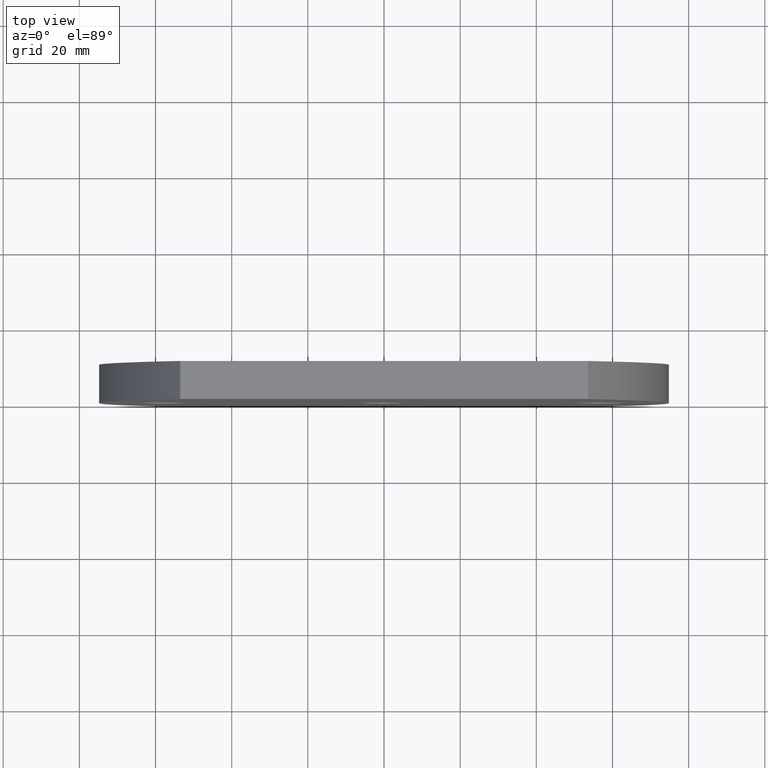
[diagram: clean part render]
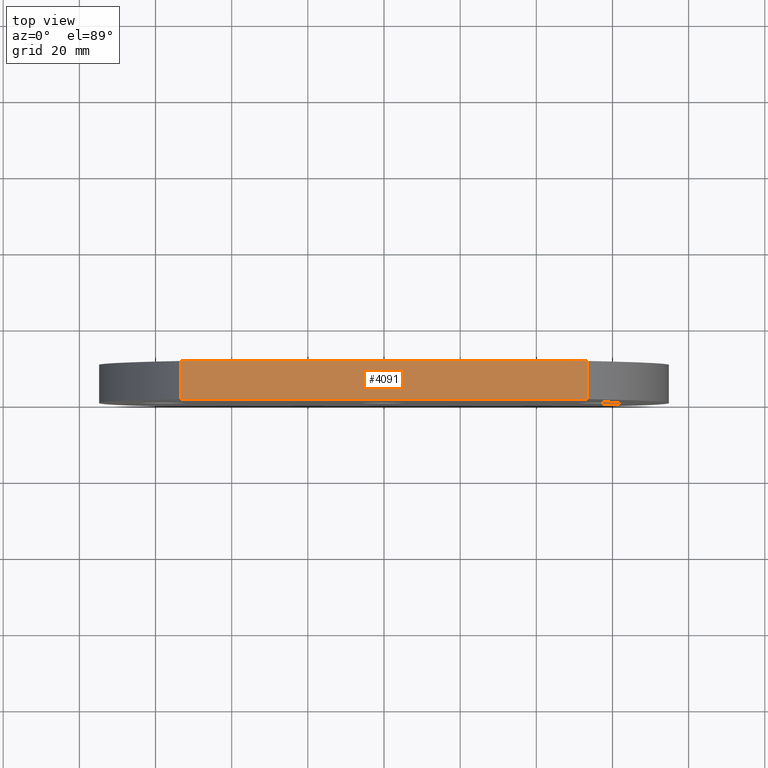
[diagram: same view with one face highlighted and labeled with its STEP entity id]
A machine part, top view. The second image highlights one B-rep face of the part: STEP entity #4091.
In plain terms, the highlighted planar face has unit normal (0, 0, -1).
Its self-contained STEP definition (entity closure, byte-faithful):
#81 = EDGE_CURVE ( 'NONE', #3441, #8683, #6983, .T. ) ;
#715 = EDGE_LOOP ( 'NONE', ( #8236, #7469, #2012, #6643 ) ) ;
#1024 = PLANE ( 'NONE',  #1656 ) ;
#1103 = VECTOR ( 'NONE', #9252, 1000.000000000000000 ) ;
#1260 = DIRECTION ( 'NONE',  ( 1.000000000000000000, 0.0000000000000000000, 0.0000000000000000000 ) ) ;
#1656 = AXIS2_PLACEMENT_3D ( 'NONE', #2608, #4936, #2641 ) ;
#1975 = VECTOR ( 'NONE', #3223, 1000.000000000000000 ) ;
#2012 = ORIENTED_EDGE ( 'NONE', *, *, #81, .F. ) ;
#2260 = CARTESIAN_POINT ( 'NONE',  ( -53.49999999999999300, 0.0000000000000000000, 60.00000000000000000 ) ) ;
#2608 = CARTESIAN_POINT ( 'NONE',  ( -53.49999999999999300, 10.00000000000000000, 60.00000000000000000 ) ) ;
#2641 = DIRECTION ( 'NONE',  ( -1.000000000000000000, 0.0000000000000000000, -0.0000000000000000000 ) ) ;
#3192 = LINE ( 'NONE', #4441, #7931 ) ;
#3223 = DIRECTION ( 'NONE',  ( -0.0000000000000000000, -1.000000000000000000, -0.0000000000000000000 ) ) ;
#3441 = VERTEX_POINT ( 'NONE', #6139 ) ;
#4091 = ADVANCED_FACE ( 'NONE', ( #5431 ), #1024, .F. ) ;
#4151 = CARTESIAN_POINT ( 'NONE',  ( -53.49999999999999300, 10.00000000000000000, 60.00000000000000000 ) ) ;
#4441 = CARTESIAN_POINT ( 'NONE',  ( 53.50000000000000700, 10.00000000000000000, 60.00000000000000000 ) ) ;
#4936 = DIRECTION ( 'NONE',  ( 0.0000000000000000000, 0.0000000000000000000, -1.000000000000000000 ) ) ;
#5290 = EDGE_CURVE ( 'NONE', #3441, #8128, #8918, .T. ) ;
#5431 = FACE_OUTER_BOUND ( 'NONE', #715, .T. ) ;
#6139 = CARTESIAN_POINT ( 'NONE',  ( -53.49999999999999300, 10.00000000000000000, 60.00000000000000000 ) ) ;
#6291 = EDGE_CURVE ( 'NONE', #8128, #9273, #9010, .T. ) ;
#6428 = CARTESIAN_POINT ( 'NONE',  ( -53.49999999999999300, 0.0000000000000000000, 60.00000000000000000 ) ) ;
#6643 = ORIENTED_EDGE ( 'NONE', *, *, #5290, .T. ) ;
#6715 = DIRECTION ( 'NONE',  ( -0.0000000000000000000, -1.000000000000000000, -0.0000000000000000000 ) ) ;
#6858 = VECTOR ( 'NONE', #1260, 1000.000000000000000 ) ;
#6983 = LINE ( 'NONE', #7645, #6858 ) ;
#7441 = CARTESIAN_POINT ( 'NONE',  ( 53.50000000000000700, 10.00000000000000000, 60.00000000000000000 ) ) ;
#7469 = ORIENTED_EDGE ( 'NONE', *, *, #7517, .F. ) ;
#7517 = EDGE_CURVE ( 'NONE', #8683, #9273, #3192, .T. ) ;
#7645 = CARTESIAN_POINT ( 'NONE',  ( -53.49999999999999300, 10.00000000000000000, 60.00000000000000000 ) ) ;
#7662 = CARTESIAN_POINT ( 'NONE',  ( 53.50000000000000700, 0.0000000000000000000, 60.00000000000000000 ) ) ;
#7931 = VECTOR ( 'NONE', #6715, 1000.000000000000000 ) ;
#8128 = VERTEX_POINT ( 'NONE', #6428 ) ;
#8236 = ORIENTED_EDGE ( 'NONE', *, *, #6291, .T. ) ;
#8683 = VERTEX_POINT ( 'NONE', #7441 ) ;
#8918 = LINE ( 'NONE', #4151, #1975 ) ;
#9010 = LINE ( 'NONE', #2260, #1103 ) ;
#9252 = DIRECTION ( 'NONE',  ( 1.000000000000000000, 0.0000000000000000000, 0.0000000000000000000 ) ) ;
#9273 = VERTEX_POINT ( 'NONE', #7662 ) ;